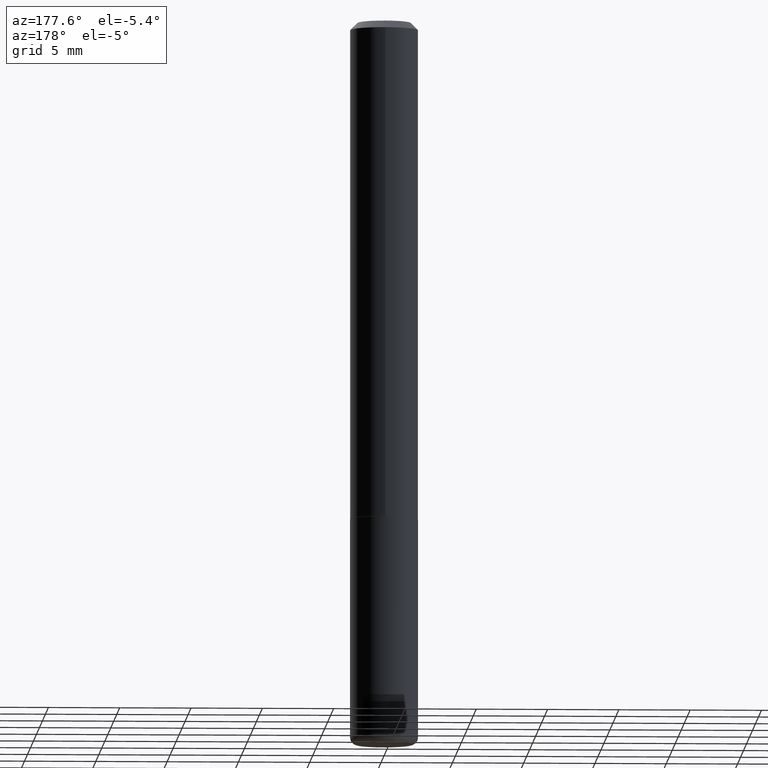
[diagram: clean part render]
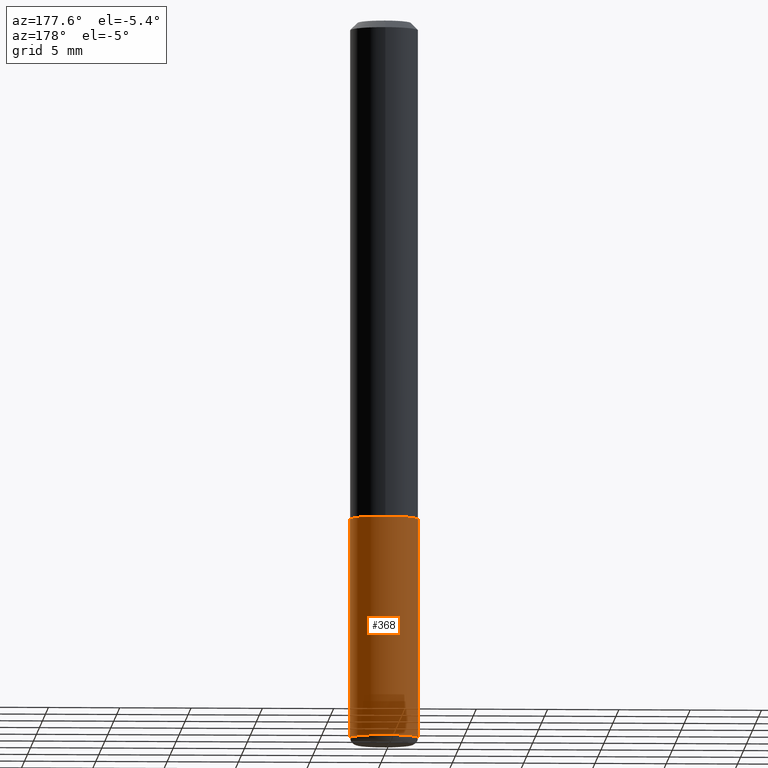
[diagram: same view with one face highlighted and labeled with its STEP entity id]
A machine part, auxiliary view. The second image highlights one B-rep face of the part: STEP entity #368.
In plain terms, the highlighted cylindrical surface (edge-blend (fillet) strip) has radius 2.3813 mm, axis along (-0, 0, 1).
Its self-contained STEP definition (entity closure, byte-faithful):
#9 = ORIENTED_EDGE ( 'NONE', *, *, #237, .F. ) ;
#25 = CARTESIAN_POINT ( 'NONE',  ( -0.09375000000000001388, -5.190826131134282474E-15, -1.375000000000000000 ) ) ;
#58 = CARTESIAN_POINT ( 'NONE',  ( 3.362519608504562260E-29, -4.800786840909324930E-15, -1.375000000000000000 ) ) ;
#64 = CIRCLE ( 'NONE', #195, 0.09375000000000001388 ) ;
#91 = VERTEX_POINT ( 'NONE', #178 ) ;
#94 = DIRECTION ( 'NONE',  ( -2.445468806185136877E-29, 3.491481338843145188E-15, 1.000000000000000000 ) ) ;
#96 = CIRCLE ( 'NONE', #390, 0.09375000000000002776 ) ;
#101 = DIRECTION ( 'NONE',  ( 1.000000000000000000, -6.982962677686265922E-15, 4.876176775795935793E-29 ) ) ;
#105 = CARTESIAN_POINT ( 'NONE',  ( 0.000000000000000000, 0.000000000000000000, 0.000000000000000000 ) ) ;
#106 = DIRECTION ( 'NONE',  ( 1.000000000000000000, -6.982962677686270655E-15, 0.000000000000000000 ) ) ;
#107 = EDGE_CURVE ( 'NONE', #340, #296, #120, .T. ) ;
#109 = CYLINDRICAL_SURFACE ( 'NONE', #227, 0.09375000000000002776 ) ;
#120 = LINE ( 'NONE', #143, #186 ) ;
#143 = CARTESIAN_POINT ( 'NONE',  ( -0.09375000000000002776, 6.661338147750941215E-16, -4.611501647113975397E-30 ) ) ;
#178 = CARTESIAN_POINT ( 'NONE',  ( 0.09375000000000001388, -5.455439591942412434E-15, -1.375000000000000000 ) ) ;
#186 = VECTOR ( 'NONE', #282, 39.37007874015748143 ) ;
#195 = AXIS2_PLACEMENT_3D ( 'NONE', #58, #415, #316 ) ;
#202 = DIRECTION ( 'NONE',  ( -2.445468806185136597E-29, 3.491481338843145583E-15, 1.000000000000000000 ) ) ;
#203 = ORIENTED_EDGE ( 'NONE', *, *, #412, .T. ) ;
#206 = FACE_OUTER_BOUND ( 'NONE', #224, .T. ) ;
#224 = EDGE_LOOP ( 'NONE', ( #203, #418, #361, #9 ) ) ;
#227 = AXIS2_PLACEMENT_3D ( 'NONE', #105, #355, #101 ) ;
#237 = EDGE_CURVE ( 'NONE', #270, #91, #257, .T. ) ;
#255 = EDGE_CURVE ( 'NONE', #91, #296, #64, .T. ) ;
#257 = LINE ( 'NONE', #290, #367 ) ;
#260 = CARTESIAN_POINT ( 'NONE',  ( 0.09374999999999995837, -7.567785801942515371E-15, -1.979999999999999982 ) ) ;
#269 = CARTESIAN_POINT ( 'NONE',  ( -0.09374999999999995837, -6.246999236134334732E-15, -1.979999999999999982 ) ) ;
#270 = VERTEX_POINT ( 'NONE', #260 ) ;
#282 = DIRECTION ( 'NONE',  ( -2.445468806185136877E-29, 3.491481338843145188E-15, 1.000000000000000000 ) ) ;
#290 = CARTESIAN_POINT ( 'NONE',  ( 0.09375000000000002776, -6.546527510330876027E-16, 4.571415727308691207E-30 ) ) ;
#296 = VERTEX_POINT ( 'NONE', #25 ) ;
#301 = CARTESIAN_POINT ( 'NONE',  ( 4.842028236246570103E-29, -6.913133050909427867E-15, -1.979999999999999982 ) ) ;
#316 = DIRECTION ( 'NONE',  ( 1.000000000000000000, -6.982962677686261189E-15, 0.000000000000000000 ) ) ;
#340 = VERTEX_POINT ( 'NONE', #269 ) ;
#355 = DIRECTION ( 'NONE',  ( -2.445468806185136597E-29, 3.491481338843145583E-15, 1.000000000000000000 ) ) ;
#361 = ORIENTED_EDGE ( 'NONE', *, *, #255, .F. ) ;
#367 = VECTOR ( 'NONE', #94, 39.37007874015748143 ) ;
#368 = ADVANCED_FACE ( 'NONE', ( #206 ), #109, .T. ) ;
#390 = AXIS2_PLACEMENT_3D ( 'NONE', #301, #202, #106 ) ;
#412 = EDGE_CURVE ( 'NONE', #270, #340, #96, .T. ) ;
#415 = DIRECTION ( 'NONE',  ( -2.445468806185136597E-29, 3.491481338843145583E-15, 1.000000000000000000 ) ) ;
#418 = ORIENTED_EDGE ( 'NONE', *, *, #107, .T. ) ;